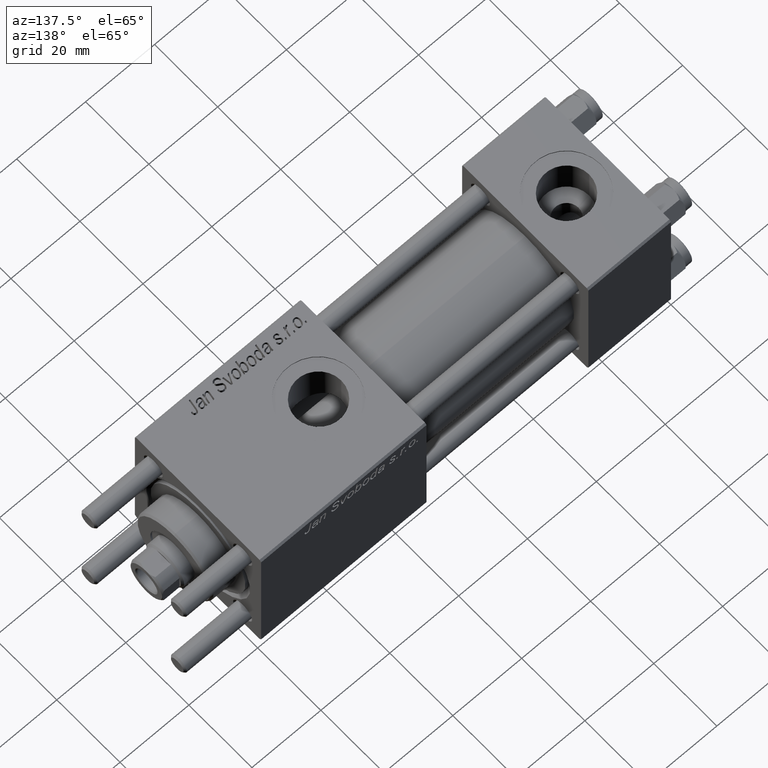
[diagram: clean part render]
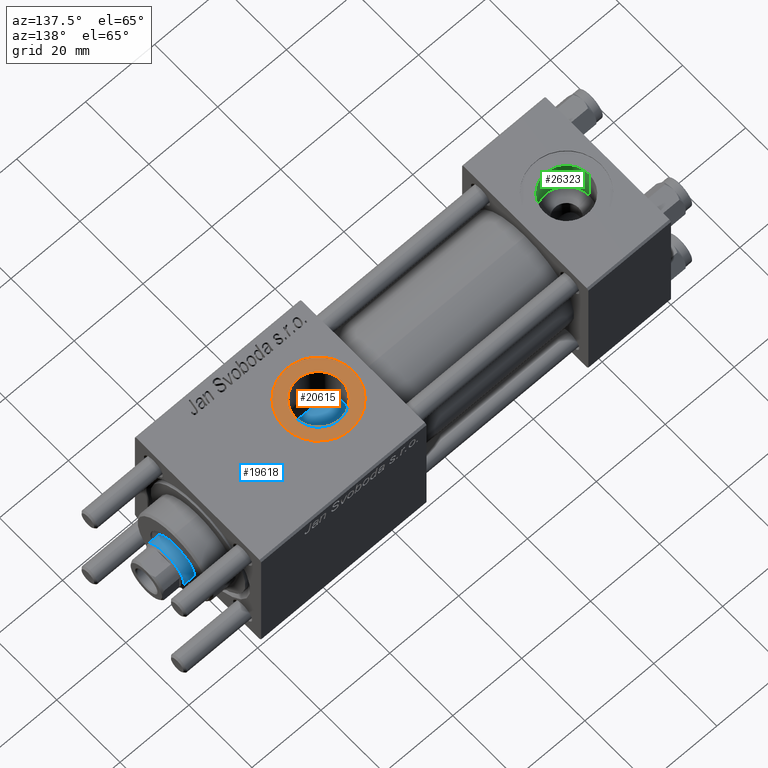
[diagram: same view with three faces highlighted in distinct colors, each labeled with its STEP entity id]
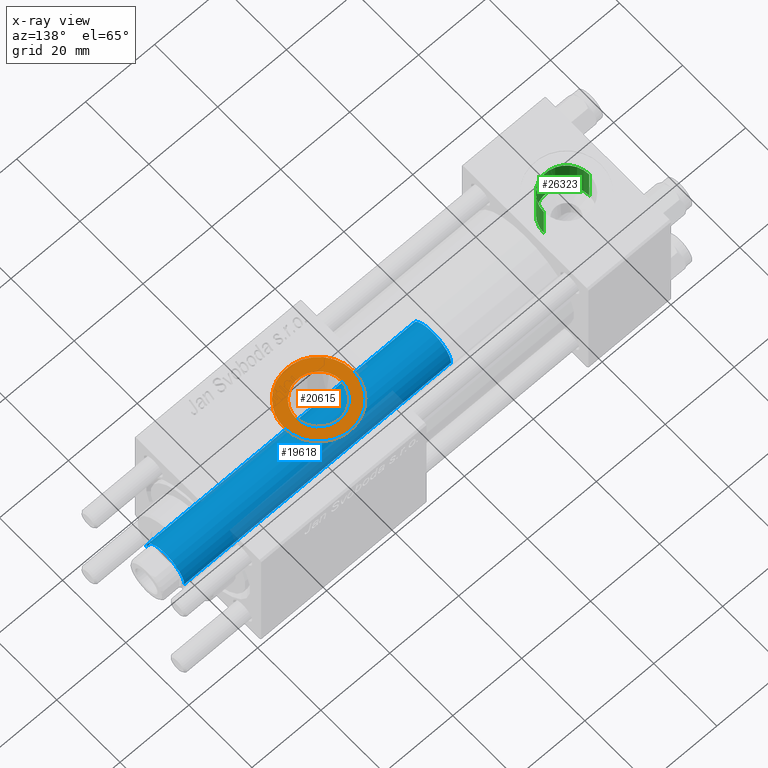
[diagram: x-ray of the same camera — body ghosted, the three highlighted faces saturated]
A machine part, auxiliary view with three faces highlighted in distinct colors.
The next image is the same camera in x-ray (body ghosted, the three faces saturated) — at least one of them is partly hidden behind the body in this view.
Their STEP definitions:

[orange] entity #20615 — the highlighted planar face has unit normal (0, 0, 1).
#2915 = CARTESIAN_POINT ( 'NONE',  ( 73.99999999999845102, -5.100766768292640183E-16, 19.80000000000000071 ) ) ;
#4788 = AXIS2_PLACEMENT_3D ( 'NONE', #16107, #51660, #11793 ) ;
#5177 = ORIENTED_EDGE ( 'NONE', *, *, #52439, .T. ) ;
#6540 = EDGE_LOOP ( 'NONE', ( #40284, #48503 ) ) ;
#7031 = DIRECTION ( 'NONE',  ( 1.000000000000000000, 0.000000000000000000, 0.000000000000000000 ) ) ;
#9132 = FACE_BOUND ( 'NONE', #6540, .T. ) ;
#10516 = DIRECTION ( 'NONE',  ( 1.000000000000000000, 0.000000000000000000, 0.000000000000000000 ) ) ;
#11793 = DIRECTION ( 'NONE',  ( 1.000000000000000000, 0.000000000000000000, 0.000000000000000000 ) ) ;
#12078 = CIRCLE ( 'NONE', #4788, 10.00000000000154898 ) ;
#12184 = DIRECTION ( 'NONE',  ( -0.000000000000000000, -0.000000000000000000, -1.000000000000000000 ) ) ;
#14299 = CARTESIAN_POINT ( 'NONE',  ( 84.00000000000000000, -1.734723475976806897E-15, 19.80000000000000071 ) ) ;
#15394 = CARTESIAN_POINT ( 'NONE',  ( 90.58000000000154728, -9.289058821376599092E-16, 19.80000000000000071 ) ) ;
#15582 = EDGE_CURVE ( 'NONE', #24377, #55988, #32023, .T. ) ;
#15899 = CARTESIAN_POINT ( 'NONE',  ( 77.41999999999846693, -1.734723475976806897E-15, 19.80000000000000071 ) ) ;
#16107 = CARTESIAN_POINT ( 'NONE',  ( 84.00000000000000000, -1.734723475976806897E-15, 19.80000000000000071 ) ) ;
#18295 = DIRECTION ( 'NONE',  ( 1.000000000000000000, 0.000000000000000000, -0.000000000000000000 ) ) ;
#19363 = ORIENTED_EDGE ( 'NONE', *, *, #29816, .T. ) ;
#20314 = DIRECTION ( 'NONE',  ( 0.000000000000000000, 0.000000000000000000, 1.000000000000000000 ) ) ;
#20615 = ADVANCED_FACE ( 'NONE', ( #9132, #36073 ), #43819, .T. ) ;
#22887 = DIRECTION ( 'NONE',  ( 0.000000000000000000, 0.000000000000000000, 1.000000000000000000 ) ) ;
#23927 = CARTESIAN_POINT ( 'NONE',  ( 94.00000000000154898, -1.734723475976806897E-15, 19.80000000000000071 ) ) ;
#24377 = VERTEX_POINT ( 'NONE', #15394 ) ;
#25365 = VERTEX_POINT ( 'NONE', #23927 ) ;
#29772 = CARTESIAN_POINT ( 'NONE',  ( 84.00000000000000000, -1.734723475976806897E-15, 19.80000000000000071 ) ) ;
#29816 = EDGE_CURVE ( 'NONE', #50264, #25365, #41599, .T. ) ;
#32023 = CIRCLE ( 'NONE', #54022, 6.580000000001542837 ) ;
#32873 = EDGE_CURVE ( 'NONE', #55988, #24377, #41592, .T. ) ;
#33670 = CARTESIAN_POINT ( 'NONE',  ( 84.00000000000000000, -1.734723475976806897E-15, 19.80000000000000071 ) ) ;
#36073 = FACE_OUTER_BOUND ( 'NONE', #37423, .T. ) ;
#37156 = DIRECTION ( 'NONE',  ( -0.000000000000000000, -0.000000000000000000, -1.000000000000000000 ) ) ;
#37423 = EDGE_LOOP ( 'NONE', ( #5177, #19363 ) ) ;
#40284 = ORIENTED_EDGE ( 'NONE', *, *, #32873, .T. ) ;
#41592 = CIRCLE ( 'NONE', #44340, 6.580000000001542837 ) ;
#41599 = CIRCLE ( 'NONE', #45293, 10.00000000000154898 ) ;
#42110 = DIRECTION ( 'NONE',  ( 1.000000000000000000, 0.000000000000000000, 0.000000000000000000 ) ) ;
#43819 = PLANE ( 'NONE',  #45001 ) ;
#44340 = AXIS2_PLACEMENT_3D ( 'NONE', #49511, #37156, #10516 ) ;
#45001 = AXIS2_PLACEMENT_3D ( 'NONE', #14299, #22887, #18295 ) ;
#45293 = AXIS2_PLACEMENT_3D ( 'NONE', #29772, #20314, #42110 ) ;
#48503 = ORIENTED_EDGE ( 'NONE', *, *, #15582, .T. ) ;
#49511 = CARTESIAN_POINT ( 'NONE',  ( 84.00000000000000000, -1.734723475976806897E-15, 19.80000000000000071 ) ) ;
#50264 = VERTEX_POINT ( 'NONE', #2915 ) ;
#51660 = DIRECTION ( 'NONE',  ( 0.000000000000000000, 0.000000000000000000, 1.000000000000000000 ) ) ;
#52439 = EDGE_CURVE ( 'NONE', #25365, #50264, #12078, .T. ) ;
#54022 = AXIS2_PLACEMENT_3D ( 'NONE', #33670, #12184, #7031 ) ;
#55988 = VERTEX_POINT ( 'NONE', #15899 ) ;

[blue] entity #19618 — the highlighted cylindrical surface (edge-blend (fillet) strip) has radius 6 mm, axis along (-1, 0, 0).
#2779 = DIRECTION ( 'NONE',  ( 1.000000000000000000, 0.000000000000000000, 0.000000000000000000 ) ) ;
#3226 = DIRECTION ( 'NONE',  ( -0.000000000000000000, -0.000000000000000000, -1.000000000000000000 ) ) ;
#5375 = CARTESIAN_POINT ( 'NONE',  ( -6.000000000000000888, 0.000000000000000000, 105.0000000000000000 ) ) ;
#6357 = VECTOR ( 'NONE', #24004, 1000.000000000000000 ) ;
#7251 = CARTESIAN_POINT ( 'NONE',  ( 6.000000000000000888, 7.347880794884120722E-16, 105.0000000000000000 ) ) ;
#8212 = VERTEX_POINT ( 'NONE', #45804 ) ;
#9117 = DIRECTION ( 'NONE',  ( 1.000000000000000000, 0.000000000000000000, 0.000000000000000000 ) ) ;
#9179 = EDGE_CURVE ( 'NONE', #49705, #27989, #55431, .T. ) ;
#11229 = AXIS2_PLACEMENT_3D ( 'NONE', #30902, #31744, #9117 ) ;
#13979 = EDGE_CURVE ( 'NONE', #28474, #8212, #19417, .T. ) ;
#15307 = CARTESIAN_POINT ( 'NONE',  ( 6.000000000000000888, 7.347880794884120722E-16, 104.5000000000000142 ) ) ;
#17159 = FACE_OUTER_BOUND ( 'NONE', #27978, .T. ) ;
#19373 = CARTESIAN_POINT ( 'NONE',  ( -6.000000000000000888, 0.000000000000000000, 104.5000000000000142 ) ) ;
#19417 = LINE ( 'NONE', #5375, #6357 ) ;
#19618 = ADVANCED_FACE ( 'NONE', ( #17159 ), #21164, .T. ) ;
#21164 = CYLINDRICAL_SURFACE ( 'NONE', #29403, 6.000000000000000888 ) ;
#23158 = CIRCLE ( 'NONE', #11229, 6.000000000000000888 ) ;
#23690 = EDGE_CURVE ( 'NONE', #8212, #27989, #23158, .T. ) ;
#24004 = DIRECTION ( 'NONE',  ( -0.000000000000000000, -0.000000000000000000, -1.000000000000000000 ) ) ;
#26634 = ORIENTED_EDGE ( 'NONE', *, *, #9179, .F. ) ;
#27137 = CIRCLE ( 'NONE', #39045, 6.000000000000000888 ) ;
#27978 = EDGE_LOOP ( 'NONE', ( #26634, #43521, #44906, #53520 ) ) ;
#27989 = VERTEX_POINT ( 'NONE', #54775 ) ;
#28474 = VERTEX_POINT ( 'NONE', #19373 ) ;
#29403 = AXIS2_PLACEMENT_3D ( 'NONE', #34645, #47554, #47274 ) ;
#30902 = CARTESIAN_POINT ( 'NONE',  ( 0.000000000000000000, 0.000000000000000000, 27.00000000000000000 ) ) ;
#31744 = DIRECTION ( 'NONE',  ( 0.000000000000000000, 0.000000000000000000, 1.000000000000000000 ) ) ;
#34645 = CARTESIAN_POINT ( 'NONE',  ( 0.000000000000000000, 0.000000000000000000, 105.0000000000000000 ) ) ;
#39045 = AXIS2_PLACEMENT_3D ( 'NONE', #55833, #50977, #2779 ) ;
#40389 = EDGE_CURVE ( 'NONE', #49705, #28474, #27137, .T. ) ;
#43521 = ORIENTED_EDGE ( 'NONE', *, *, #40389, .T. ) ;
#44906 = ORIENTED_EDGE ( 'NONE', *, *, #13979, .T. ) ;
#45735 = VECTOR ( 'NONE', #3226, 1000.000000000000000 ) ;
#45804 = CARTESIAN_POINT ( 'NONE',  ( -6.000000000000000888, 0.000000000000000000, 27.00000000000000000 ) ) ;
#47274 = DIRECTION ( 'NONE',  ( -1.000000000000000000, 0.000000000000000000, 0.000000000000000000 ) ) ;
#47554 = DIRECTION ( 'NONE',  ( -0.000000000000000000, -0.000000000000000000, -1.000000000000000000 ) ) ;
#49705 = VERTEX_POINT ( 'NONE', #15307 ) ;
#50977 = DIRECTION ( 'NONE',  ( 0.000000000000000000, 0.000000000000000000, -1.000000000000000000 ) ) ;
#53520 = ORIENTED_EDGE ( 'NONE', *, *, #23690, .T. ) ;
#54775 = CARTESIAN_POINT ( 'NONE',  ( 6.000000000000000888, 7.347880794884120722E-16, 27.00000000000000000 ) ) ;
#55431 = LINE ( 'NONE', #7251, #45735 ) ;
#55833 = CARTESIAN_POINT ( 'NONE',  ( 0.000000000000000000, 0.000000000000000000, 104.5000000000000142 ) ) ;

[green] entity #26323 — the highlighted cylindrical surface (edge-blend (fillet) strip) has radius 6.58 mm, axis along (0, 0, 1).
#1671 = ORIENTED_EDGE ( 'NONE', *, *, #33445, .T. ) ;
#3942 = DIRECTION ( 'NONE',  ( 1.000000000000000000, 0.000000000000000000, 0.000000000000000000 ) ) ;
#5310 = CARTESIAN_POINT ( 'NONE',  ( 12.00000000000000000, 1.540743955509788682E-30, 9.199999999999995737 ) ) ;
#7797 = VERTEX_POINT ( 'NONE', #18091 ) ;
#8034 = CARTESIAN_POINT ( 'NONE',  ( 18.57999999999999829, 1.540743955509788682E-30, 9.199999999999995737 ) ) ;
#8249 = CARTESIAN_POINT ( 'NONE',  ( 12.00000000000000000, 1.540743955509788682E-30, 9.165987261146492315 ) ) ;
#8887 = ORIENTED_EDGE ( 'NONE', *, *, #42269, .F. ) ;
#9592 = CIRCLE ( 'NONE', #12337, 6.579999999999999183 ) ;
#10640 = CARTESIAN_POINT ( 'NONE',  ( 5.420000000000000817, 8.058175938389596335E-16, 19.79999999999999716 ) ) ;
#12226 = EDGE_LOOP ( 'NONE', ( #1671, #15712, #35943, #8887 ) ) ;
#12283 = DIRECTION ( 'NONE',  ( -0.000000000000000000, -0.000000000000000000, -1.000000000000000000 ) ) ;
#12337 = AXIS2_PLACEMENT_3D ( 'NONE', #44623, #27404, #49213 ) ;
#12523 = VERTEX_POINT ( 'NONE', #35964 ) ;
#14158 = CIRCLE ( 'NONE', #53526, 6.579999999999999183 ) ;
#15073 = CYLINDRICAL_SURFACE ( 'NONE', #29606, 6.579999999999999183 ) ;
#15712 = ORIENTED_EDGE ( 'NONE', *, *, #54515, .T. ) ;
#15964 = VERTEX_POINT ( 'NONE', #10640 ) ;
#17097 = DIRECTION ( 'NONE',  ( -0.000000000000000000, -0.000000000000000000, 1.000000000000000000 ) ) ;
#18091 = CARTESIAN_POINT ( 'NONE',  ( 5.420000000000000817, 8.058175938389596335E-16, 9.165987261146492315 ) ) ;
#19900 = CARTESIAN_POINT ( 'NONE',  ( 18.57999999999999829, 1.540743955509788682E-30, 19.79999999999999716 ) ) ;
#22818 = DIRECTION ( 'NONE',  ( -0.000000000000000000, -0.000000000000000000, 1.000000000000000000 ) ) ;
#24848 = CARTESIAN_POINT ( 'NONE',  ( 5.420000000000000817, 8.058175938389596335E-16, 9.199999999999995737 ) ) ;
#25511 = DIRECTION ( 'NONE',  ( -0.000000000000000000, -0.000000000000000000, 1.000000000000000000 ) ) ;
#26323 = ADVANCED_FACE ( 'NONE', ( #31415 ), #15073, .F. ) ;
#27404 = DIRECTION ( 'NONE',  ( 0.000000000000000000, 0.000000000000000000, 1.000000000000000000 ) ) ;
#29606 = AXIS2_PLACEMENT_3D ( 'NONE', #5310, #22818, #40303 ) ;
#31071 = VERTEX_POINT ( 'NONE', #19900 ) ;
#31415 = FACE_OUTER_BOUND ( 'NONE', #12226, .T. ) ;
#33445 = EDGE_CURVE ( 'NONE', #12523, #7797, #14158, .T. ) ;
#34993 = EDGE_CURVE ( 'NONE', #15964, #31071, #9592, .T. ) ;
#35943 = ORIENTED_EDGE ( 'NONE', *, *, #34993, .T. ) ;
#35964 = CARTESIAN_POINT ( 'NONE',  ( 18.57999999999999829, 1.540743955509788682E-30, 9.165987261146492315 ) ) ;
#38600 = LINE ( 'NONE', #24848, #51563 ) ;
#40303 = DIRECTION ( 'NONE',  ( 1.000000000000000000, 0.000000000000000000, 0.000000000000000000 ) ) ;
#42269 = EDGE_CURVE ( 'NONE', #12523, #31071, #47321, .T. ) ;
#44623 = CARTESIAN_POINT ( 'NONE',  ( 12.00000000000000000, 1.540743955509788682E-30, 19.79999999999999716 ) ) ;
#44792 = VECTOR ( 'NONE', #25511, 1000.000000000000000 ) ;
#47321 = LINE ( 'NONE', #8034, #44792 ) ;
#49213 = DIRECTION ( 'NONE',  ( 1.000000000000000000, 0.000000000000000000, 0.000000000000000000 ) ) ;
#51563 = VECTOR ( 'NONE', #17097, 1000.000000000000000 ) ;
#53526 = AXIS2_PLACEMENT_3D ( 'NONE', #8249, #12283, #3942 ) ;
#54515 = EDGE_CURVE ( 'NONE', #7797, #15964, #38600, .T. ) ;